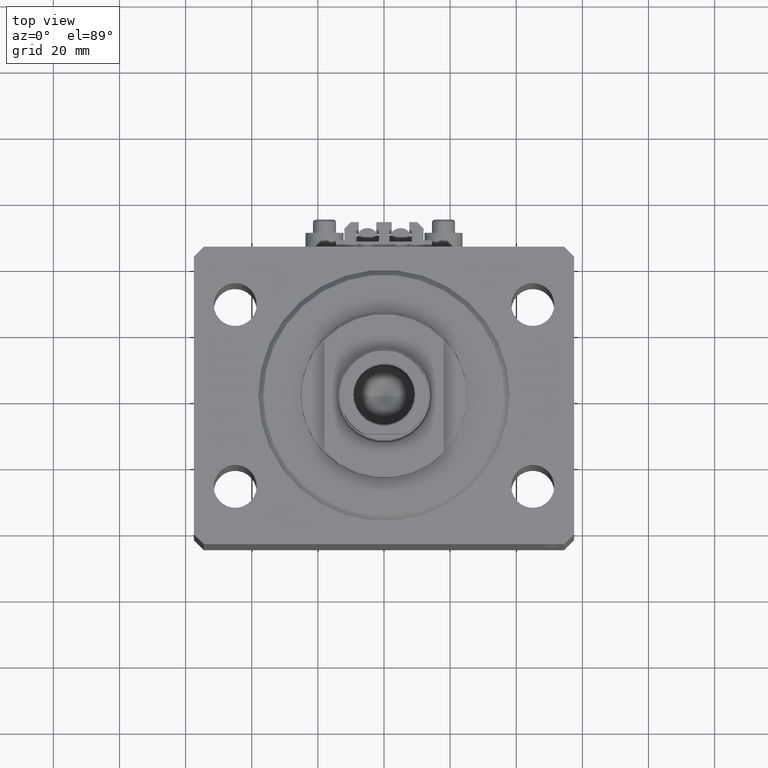
[diagram: clean part render]
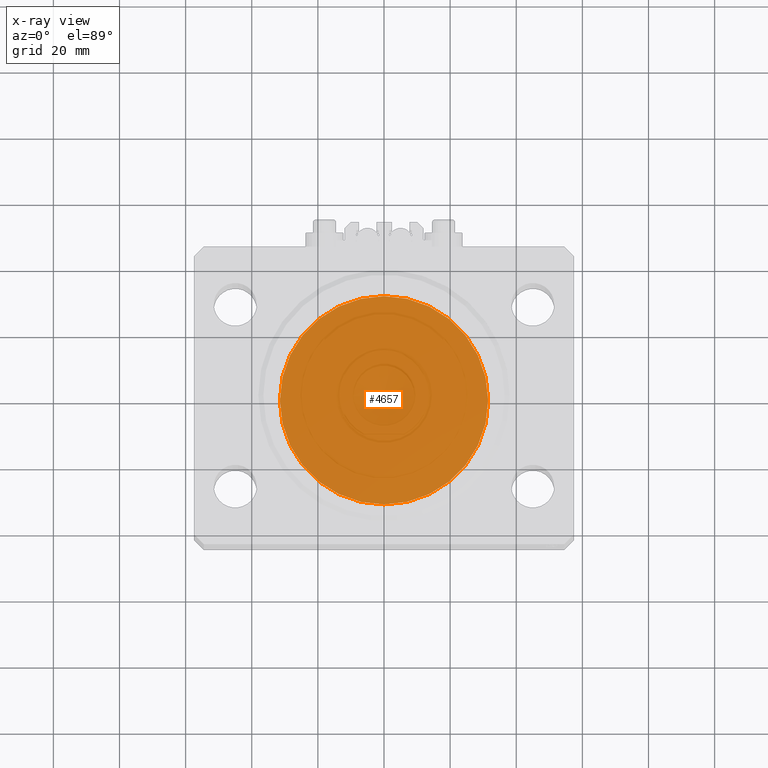
[diagram: x-ray — body ghosted, one internal face saturated and labeled with its STEP entity id]
A machine part, top view, then the same camera in x-ray: the body is ghosted and one INTERNAL B-rep face — a face not visible from any outside direction — is saturated and labeled: STEP entity #4657.
In plain terms, the highlighted planar face has unit normal (0, 0, 1).
Its self-contained STEP definition (entity closure, byte-faithful):
#4657 = ADVANCED_FACE ( 'NONE', ( #47683 ), #21414, .F. ) ;
#6432 = DIRECTION ( 'NONE',  ( 1.000000000000000000, 0.000000000000000000, 0.000000000000000000 ) ) ;
#8274 = AXIS2_PLACEMENT_3D ( 'NONE', #40612, #29213, #47223 ) ;
#12361 = EDGE_CURVE ( 'NONE', #16167, #42547, #46801, .T. ) ;
#14241 = DIRECTION ( 'NONE',  ( 0.000000000000000000, 0.000000000000000000, 1.000000000000000000 ) ) ;
#14473 = DIRECTION ( 'NONE',  ( 1.000000000000000000, 0.000000000000000000, 0.000000000000000000 ) ) ;
#14846 = AXIS2_PLACEMENT_3D ( 'NONE', #47594, #14241, #14473 ) ;
#16167 = VERTEX_POINT ( 'NONE', #35565 ) ;
#21414 = PLANE ( 'NONE',  #8274 ) ;
#26519 = EDGE_CURVE ( 'NONE', #42547, #16167, #45974, .T. ) ;
#29213 = DIRECTION ( 'NONE',  ( 0.000000000000000000, 0.000000000000000000, 1.000000000000000000 ) ) ;
#35565 = CARTESIAN_POINT ( 'NONE',  ( -31.50000000000000000, 0.000000000000000000, 0.000000000000000000 ) ) ;
#35938 = AXIS2_PLACEMENT_3D ( 'NONE', #47318, #36841, #6432 ) ;
#36841 = DIRECTION ( 'NONE',  ( 0.000000000000000000, 0.000000000000000000, 1.000000000000000000 ) ) ;
#40612 = CARTESIAN_POINT ( 'NONE',  ( 0.000000000000000000, 0.000000000000000000, 0.000000000000000000 ) ) ;
#42471 = CARTESIAN_POINT ( 'NONE',  ( 31.50000000000000000, 3.857637417314162689E-15, 0.000000000000000000 ) ) ;
#42547 = VERTEX_POINT ( 'NONE', #42471 ) ;
#45974 = CIRCLE ( 'NONE', #14846, 31.50000000000000000 ) ;
#46194 = ORIENTED_EDGE ( 'NONE', *, *, #12361, .F. ) ;
#46720 = EDGE_LOOP ( 'NONE', ( #46194, #47793 ) ) ;
#46801 = CIRCLE ( 'NONE', #35938, 31.50000000000000000 ) ;
#47223 = DIRECTION ( 'NONE',  ( 1.000000000000000000, 0.000000000000000000, -0.000000000000000000 ) ) ;
#47318 = CARTESIAN_POINT ( 'NONE',  ( 0.000000000000000000, 0.000000000000000000, 0.000000000000000000 ) ) ;
#47594 = CARTESIAN_POINT ( 'NONE',  ( 0.000000000000000000, 0.000000000000000000, 0.000000000000000000 ) ) ;
#47683 = FACE_OUTER_BOUND ( 'NONE', #46720, .T. ) ;
#47793 = ORIENTED_EDGE ( 'NONE', *, *, #26519, .F. ) ;